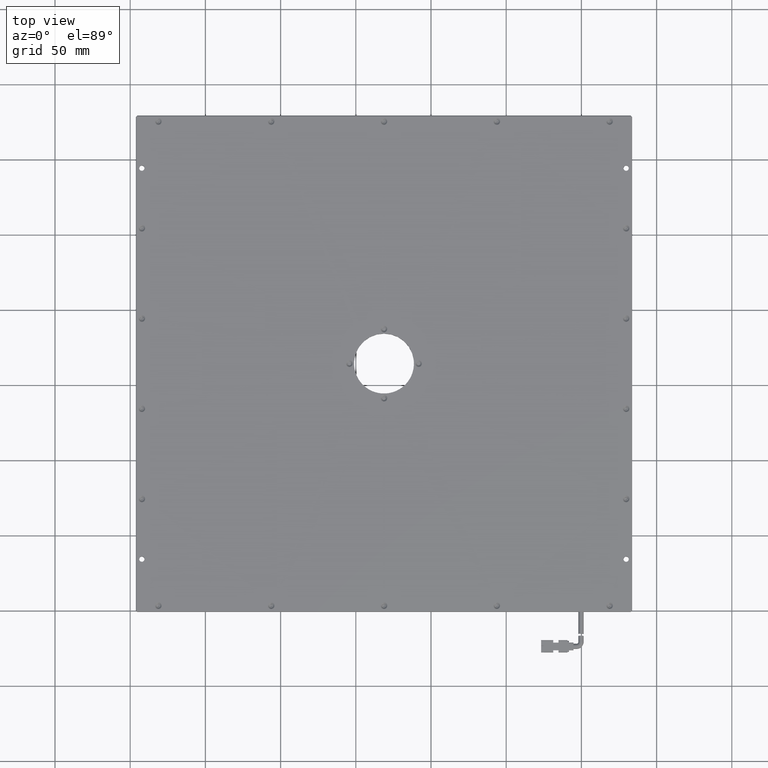
[diagram: clean part render]
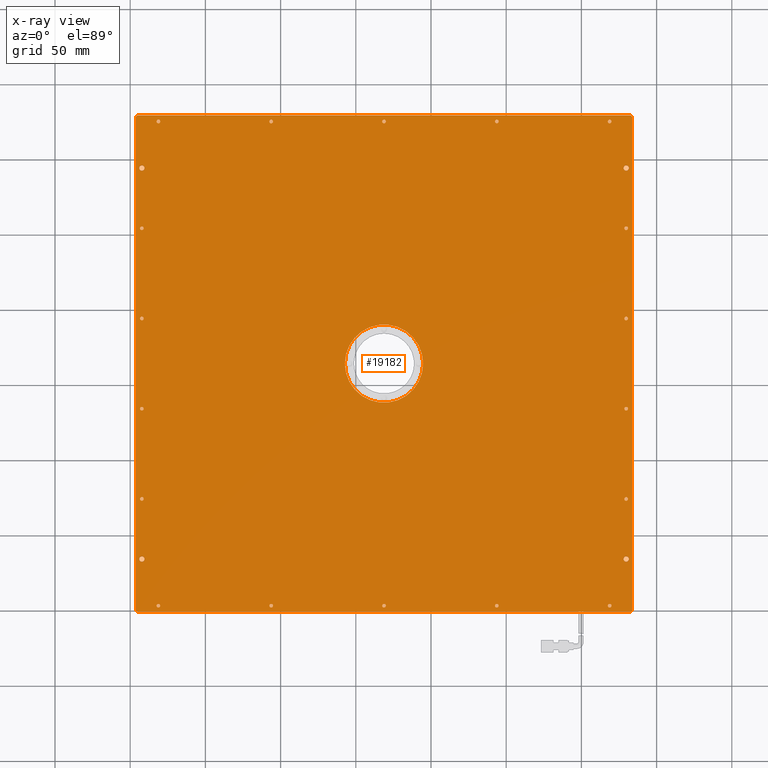
[diagram: x-ray — body ghosted, one internal face saturated and labeled with its STEP entity id]
A machine part, top view, then the same camera in x-ray: the body is ghosted and one INTERNAL B-rep face — a face not visible from any outside direction — is saturated and labeled: STEP entity #19182.
In plain terms, the highlighted planar face has unit normal (0, -0, 1).
Its self-contained STEP definition (entity closure, byte-faithful):
#18 = CIRCLE ( 'NONE', #28772, 1.199999999999978900 ) ;
#124 = VERTEX_POINT ( 'NONE', #7021 ) ;
#370 = CARTESIAN_POINT ( 'NONE',  ( -192.2439076390644700, -65.69342595209401700, 8.000000000019099400 ) ) ;
#433 = AXIS2_PLACEMENT_3D ( 'NONE', #6831, #9291, #19518 ) ;
#702 = EDGE_CURVE ( 'NONE', #32369, #29564, #12776, .T. ) ;
#711 = VERTEX_POINT ( 'NONE', #30310 ) ;
#767 = AXIS2_PLACEMENT_3D ( 'NONE', #370, #18165, #31047 ) ;
#797 = DIRECTION ( 'NONE',  ( 0.0000000000000000000, 0.0000000000000000000, -1.000000000000000000 ) ) ;
#875 = ORIENTED_EDGE ( 'NONE', *, *, #2136, .F. ) ;
#881 = CARTESIAN_POINT ( 'NONE',  ( 129.7560923609355300, -25.69342595209400700, 8.000000000019095800 ) ) ;
#1251 = ORIENTED_EDGE ( 'NONE', *, *, #29043, .F. ) ;
#1323 = ORIENTED_EDGE ( 'NONE', *, *, #9348, .F. ) ;
#1390 = VECTOR ( 'NONE', #23203, 1000.000000000000100 ) ;
#1543 = CARTESIAN_POINT ( 'NONE',  ( -192.2439076390644700, 94.30657404790598300, 8.000000000019095800 ) ) ;
#1576 = CIRCLE ( 'NONE', #12887, 1.199999999999992600 ) ;
#1642 = CARTESIAN_POINT ( 'NONE',  ( -192.2439076390644700, -65.69342595209401700, 8.000000000019099400 ) ) ;
#1650 = EDGE_CURVE ( 'NONE', #22487, #13819, #31326, .T. ) ;
#1664 = EDGE_CURVE ( 'NONE', #31413, #3833, #6856, .T. ) ;
#1701 = ORIENTED_EDGE ( 'NONE', *, *, #14991, .F. ) ;
#1705 = CARTESIAN_POINT ( 'NONE',  ( 119.9560923609355000, 225.3065740479061100, 8.000000000019095800 ) ) ;
#1712 = EDGE_CURVE ( 'NONE', #19999, #10835, #11291, .T. ) ;
#1716 = CARTESIAN_POINT ( 'NONE',  ( -181.2439076390644700, 225.3065740479060500, 8.000000000019095800 ) ) ;
#1827 = AXIS2_PLACEMENT_3D ( 'NONE', #29976, #32204, #30076 ) ;
#2038 = ORIENTED_EDGE ( 'NONE', *, *, #18728, .F. ) ;
#2070 = ORIENTED_EDGE ( 'NONE', *, *, #4820, .F. ) ;
#2124 = DIRECTION ( 'NONE',  ( 1.000000000000000000, 0.0000000000000000000, 0.0000000000000000000 ) ) ;
#2136 = EDGE_CURVE ( 'NONE', #17359, #26655, #6047, .T. ) ;
#2234 = EDGE_CURVE ( 'NONE', #6999, #31773, #26145, .T. ) ;
#2264 = AXIS2_PLACEMENT_3D ( 'NONE', #16101, #14116, #16560 ) ;
#2294 = EDGE_CURVE ( 'NONE', #8428, #26035, #29338, .T. ) ;
#2347 = VERTEX_POINT ( 'NONE', #29747 ) ;
#2375 = VECTOR ( 'NONE', #13214, 1000.000000000000100 ) ;
#2379 = FACE_BOUND ( 'NONE', #30034, .T. ) ;
#2436 = EDGE_CURVE ( 'NONE', #23072, #17480, #28508, .T. ) ;
#2516 = CIRCLE ( 'NONE', #10574, 1.799999999999996000 ) ;
#2553 = EDGE_CURVE ( 'NONE', #2347, #14921, #24467, .T. ) ;
#2600 = CARTESIAN_POINT ( 'NONE',  ( -106.2439076390644600, 225.3065740479060500, 8.000000000019095800 ) ) ;
#2701 = EDGE_CURVE ( 'NONE', #21634, #2768, #1576, .T. ) ;
#2752 = DIRECTION ( 'NONE',  ( 1.000000000000000000, 0.0000000000000000000, 0.0000000000000000000 ) ) ;
#2768 = VERTEX_POINT ( 'NONE', #29599 ) ;
#2816 = ORIENTED_EDGE ( 'NONE', *, *, #2701, .F. ) ;
#2862 = CARTESIAN_POINT ( 'NONE',  ( 117.5560923609355200, -96.69342595209401700, 8.000000000019095800 ) ) ;
#2888 = CARTESIAN_POINT ( 'NONE',  ( 133.7560923609355300, 229.3065740479060500, 8.000000000019099400 ) ) ;
#2909 = CIRCLE ( 'NONE', #3330, 1.199999999999992600 ) ;
#2914 = CARTESIAN_POINT ( 'NONE',  ( 132.7560923609355000, -100.6934259520939700, 8.000000000019097600 ) ) ;
#3014 = CARTESIAN_POINT ( 'NONE',  ( 128.5560923609355400, -25.69342595209400700, 8.000000000019095800 ) ) ;
#3135 = DIRECTION ( 'NONE',  ( 0.0000000000000000000, 0.0000000000000000000, -1.000000000000000000 ) ) ;
#3139 = CARTESIAN_POINT ( 'NONE',  ( -195.2439076390645000, -100.6934259520940000, 8.000000000019097600 ) ) ;
#3144 = CARTESIAN_POINT ( 'NONE',  ( -192.2439076390644700, 34.30657404790599000, 8.000000000019095800 ) ) ;
#3219 = CARTESIAN_POINT ( 'NONE',  ( 118.7560923609355100, 225.3065740479061100, 8.000000000019095800 ) ) ;
#3317 = ORIENTED_EDGE ( 'NONE', *, *, #32926, .F. ) ;
#3330 = AXIS2_PLACEMENT_3D ( 'NONE', #29538, #28624, #20878 ) ;
#3376 = DIRECTION ( 'NONE',  ( 1.000000000000000000, 0.0000000000000000000, 0.0000000000000000000 ) ) ;
#3506 = DIRECTION ( 'NONE',  ( 1.000000000000000000, 0.0000000000000000000, 0.0000000000000000000 ) ) ;
#3534 = CARTESIAN_POINT ( 'NONE',  ( -193.4439076390644600, -25.69342595209400700, 8.000000000019095800 ) ) ;
#3535 = AXIS2_PLACEMENT_3D ( 'NONE', #14899, #19876, #4534 ) ;
#3754 = EDGE_CURVE ( 'NONE', #9263, #124, #25897, .T. ) ;
#3812 = CARTESIAN_POINT ( 'NONE',  ( -105.0439076390644900, 225.3065740479060500, 8.000000000019095800 ) ) ;
#3833 = VERTEX_POINT ( 'NONE', #32748 ) ;
#3881 = DIRECTION ( 'NONE',  ( 0.0000000000000000000, 0.0000000000000000000, -1.000000000000000000 ) ) ;
#3906 = ORIENTED_EDGE ( 'NONE', *, *, #23240, .F. ) ;
#4021 = FACE_BOUND ( 'NONE', #4828, .T. ) ;
#4069 = ORIENTED_EDGE ( 'NONE', *, *, #27746, .F. ) ;
#4148 = CARTESIAN_POINT ( 'NONE',  ( -194.0439076390644600, 194.3065740479059700, 8.000000000019099400 ) ) ;
#4168 = AXIS2_PLACEMENT_3D ( 'NONE', #1543, #19469, #24326 ) ;
#4178 = EDGE_CURVE ( 'NONE', #18015, #10623, #28620, .T. ) ;
#4188 = CARTESIAN_POINT ( 'NONE',  ( 129.7560923609355300, 154.3065740479060000, 8.000000000019095800 ) ) ;
#4297 = EDGE_CURVE ( 'NONE', #8553, #25926, #25016, .T. ) ;
#4368 = ORIENTED_EDGE ( 'NONE', *, *, #25449, .T. ) ;
#4402 = FACE_BOUND ( 'NONE', #16705, .T. ) ;
#4458 = ORIENTED_EDGE ( 'NONE', *, *, #11627, .F. ) ;
#4534 = DIRECTION ( 'NONE',  ( 1.000000000000000000, 0.0000000000000000000, 0.0000000000000000000 ) ) ;
#4540 = DIRECTION ( 'NONE',  ( 0.0000000000000000000, 0.0000000000000000000, -1.000000000000000000 ) ) ;
#4545 = CIRCLE ( 'NONE', #10685, 1.199999999999978900 ) ;
#4585 = EDGE_LOOP ( 'NONE', ( #32529, #4458 ) ) ;
#4820 = EDGE_CURVE ( 'NONE', #10623, #18015, #11095, .T. ) ;
#4828 = EDGE_LOOP ( 'NONE', ( #23461, #10296 ) ) ;
#4878 = VERTEX_POINT ( 'NONE', #7724 ) ;
#4901 = EDGE_CURVE ( 'NONE', #23500, #23954, #5460, .T. ) ;
#4996 = CARTESIAN_POINT ( 'NONE',  ( 130.9560923609354900, 34.30657404790599000, 8.000000000019095800 ) ) ;
#5094 = DIRECTION ( 'NONE',  ( 1.000000000000000000, 0.0000000000000000000, 0.0000000000000000000 ) ) ;
#5150 = CARTESIAN_POINT ( 'NONE',  ( 133.7560923609355300, 229.3065740479060500, 8.000000000019099400 ) ) ;
#5156 = CARTESIAN_POINT ( 'NONE',  ( -192.2439076390644700, 194.3065740479059700, 8.000000000019099400 ) ) ;
#5199 = FACE_BOUND ( 'NONE', #8106, .T. ) ;
#5201 = DIRECTION ( 'NONE',  ( 0.0000000000000000000, 0.0000000000000000000, -1.000000000000000000 ) ) ;
#5236 = DIRECTION ( 'NONE',  ( 0.0000000000000000000, 0.0000000000000000000, -1.000000000000000000 ) ) ;
#5255 = EDGE_CURVE ( 'NONE', #8553, #7636, #14605, .T. ) ;
#5273 = AXIS2_PLACEMENT_3D ( 'NONE', #1716, #27531, #19641 ) ;
#5329 = CARTESIAN_POINT ( 'NONE',  ( -31.24390763906445700, 64.30657404790599700, 8.000000000019099400 ) ) ;
#5355 = EDGE_CURVE ( 'NONE', #11632, #12613, #25443, .T. ) ;
#5374 = DIRECTION ( 'NONE',  ( 0.0000000000000000000, -0.0000000000000000000, 1.000000000000000000 ) ) ;
#5460 = CIRCLE ( 'NONE', #16863, 1.199999999999992600 ) ;
#5484 = AXIS2_PLACEMENT_3D ( 'NONE', #2600, #17925, #20527 ) ;
#5601 = EDGE_CURVE ( 'NONE', #30596, #6038, #4545, .T. ) ;
#5606 = FACE_BOUND ( 'NONE', #4585, .T. ) ;
#5720 = EDGE_LOOP ( 'NONE', ( #24439, #14160 ) ) ;
#5819 = DIRECTION ( 'NONE',  ( 1.000000000000000000, 0.0000000000000000000, 0.0000000000000000000 ) ) ;
#5853 = ORIENTED_EDGE ( 'NONE', *, *, #5601, .F. ) ;
#6038 = VERTEX_POINT ( 'NONE', #11810 ) ;
#6047 = LINE ( 'NONE', #2888, #18860 ) ;
#6228 = EDGE_LOOP ( 'NONE', ( #28458, #32213 ) ) ;
#6274 = ORIENTED_EDGE ( 'NONE', *, *, #19658, .F. ) ;
#6297 = CARTESIAN_POINT ( 'NONE',  ( -107.4439076390644500, -96.69342595209406000, 8.000000000019095800 ) ) ;
#6406 = FACE_BOUND ( 'NONE', #9289, .T. ) ;
#6575 = CARTESIAN_POINT ( 'NONE',  ( -31.24390763906445700, 64.30657404790599700, 8.000000000019099400 ) ) ;
#6583 = EDGE_CURVE ( 'NONE', #24718, #20571, #21601, .T. ) ;
#6755 = CARTESIAN_POINT ( 'NONE',  ( -192.2439076390644700, 34.30657404790599000, 8.000000000019095800 ) ) ;
#6780 = FACE_BOUND ( 'NONE', #18733, .T. ) ;
#6831 = CARTESIAN_POINT ( 'NONE',  ( 118.7560923609355100, 225.3065740479061100, 8.000000000019095800 ) ) ;
#6843 = CARTESIAN_POINT ( 'NONE',  ( 128.5560923609355400, 154.3065740479060000, 8.000000000019095800 ) ) ;
#6856 = CIRCLE ( 'NONE', #9184, 1.199999999999978900 ) ;
#6900 = CARTESIAN_POINT ( 'NONE',  ( 117.5560923609355200, 225.3065740479061100, 8.000000000019095800 ) ) ;
#6999 = VERTEX_POINT ( 'NONE', #1705 ) ;
#7013 = CIRCLE ( 'NONE', #15856, 1.199999999999978900 ) ;
#7021 = CARTESIAN_POINT ( 'NONE',  ( -105.0439076390644900, -96.69342595209406000, 8.000000000019095800 ) ) ;
#7072 = CIRCLE ( 'NONE', #22678, 1.200000000000006600 ) ;
#7243 = VERTEX_POINT ( 'NONE', #26942 ) ;
#7389 = CARTESIAN_POINT ( 'NONE',  ( 133.7560923609355300, -99.69342595209396100, 8.000000000019097600 ) ) ;
#7469 = EDGE_CURVE ( 'NONE', #2768, #21634, #20858, .T. ) ;
#7534 = EDGE_CURVE ( 'NONE', #24550, #31129, #13619, .T. ) ;
#7564 = CARTESIAN_POINT ( 'NONE',  ( 119.9560923609355000, -96.69342595209401700, 8.000000000019095800 ) ) ;
#7573 = FACE_OUTER_BOUND ( 'NONE', #17624, .T. ) ;
#7587 = DIRECTION ( 'NONE',  ( 0.0000000000000000000, 0.0000000000000000000, -1.000000000000000000 ) ) ;
#7636 = VERTEX_POINT ( 'NONE', #2914 ) ;
#7706 = CIRCLE ( 'NONE', #12278, 26.00000000000002100 ) ;
#7724 = CARTESIAN_POINT ( 'NONE',  ( -180.0439076390644900, -96.69342595209407400, 8.000000000019095800 ) ) ;
#7824 = ORIENTED_EDGE ( 'NONE', *, *, #11873, .F. ) ;
#7960 = DIRECTION ( 'NONE',  ( 0.0000000000000000000, 0.0000000000000000000, -1.000000000000000000 ) ) ;
#7965 = DIRECTION ( 'NONE',  ( 1.000000000000000000, 0.0000000000000000000, 0.0000000000000000000 ) ) ;
#8106 = EDGE_LOOP ( 'NONE', ( #30561, #30810 ) ) ;
#8205 = CARTESIAN_POINT ( 'NONE',  ( -191.0439076390645100, 94.30657404790598300, 8.000000000019095800 ) ) ;
#8329 = CARTESIAN_POINT ( 'NONE',  ( 129.7560923609355300, 154.3065740479060000, 8.000000000019095800 ) ) ;
#8402 = AXIS2_PLACEMENT_3D ( 'NONE', #11250, #23718, #16380 ) ;
#8428 = VERTEX_POINT ( 'NONE', #27186 ) ;
#8454 = CIRCLE ( 'NONE', #28875, 1.199999999999978900 ) ;
#8508 = CARTESIAN_POINT ( 'NONE',  ( 131.5560923609355100, -65.69342595209401700, 8.000000000019099400 ) ) ;
#8553 = VERTEX_POINT ( 'NONE', #7389 ) ;
#8595 = CIRCLE ( 'NONE', #23662, 1.200000000000006600 ) ;
#9050 = EDGE_LOOP ( 'NONE', ( #1701, #4069 ) ) ;
#9080 = AXIS2_PLACEMENT_3D ( 'NONE', #30547, #5236, #18101 ) ;
#9093 = EDGE_CURVE ( 'NONE', #30023, #19202, #8595, .T. ) ;
#9184 = AXIS2_PLACEMENT_3D ( 'NONE', #3144, #31123, #5819 ) ;
#9200 = CARTESIAN_POINT ( 'NONE',  ( 130.9560923609354900, -25.69342595209400700, 8.000000000019095800 ) ) ;
#9228 = DIRECTION ( 'NONE',  ( 1.000000000000000000, 0.0000000000000000000, 0.0000000000000000000 ) ) ;
#9231 = DIRECTION ( 'NONE',  ( 0.0000000000000000000, 0.0000000000000000000, -1.000000000000000000 ) ) ;
#9263 = VERTEX_POINT ( 'NONE', #6297 ) ;
#9289 = EDGE_LOOP ( 'NONE', ( #27563, #28871 ) ) ;
#9291 = DIRECTION ( 'NONE',  ( 0.0000000000000000000, 0.0000000000000000000, -1.000000000000000000 ) ) ;
#9348 = EDGE_CURVE ( 'NONE', #17480, #23072, #12580, .T. ) ;
#9404 = DIRECTION ( 'NONE',  ( -0.0000000000000000000, -1.000000000000000000, -0.0000000000000000000 ) ) ;
#9441 = CARTESIAN_POINT ( 'NONE',  ( -192.2439076390644700, -25.69342595209400700, 8.000000000019095800 ) ) ;
#9453 = DIRECTION ( 'NONE',  ( 0.7071067811865672200, -0.7071067811865279200, 0.0000000000000000000 ) ) ;
#9503 = DIRECTION ( 'NONE',  ( 0.0000000000000000000, 0.0000000000000000000, -1.000000000000000000 ) ) ;
#9793 = VECTOR ( 'NONE', #9404, 1000.000000000000000 ) ;
#9875 = AXIS2_PLACEMENT_3D ( 'NONE', #18363, #30808, #28481 ) ;
#9983 = FACE_BOUND ( 'NONE', #26868, .T. ) ;
#10045 = CARTESIAN_POINT ( 'NONE',  ( -32.44390763906449100, -96.69342595209404600, 8.000000000019095800 ) ) ;
#10047 = CARTESIAN_POINT ( 'NONE',  ( 43.75609236093549700, -96.69342595209403200, 8.000000000019095800 ) ) ;
#10110 = CARTESIAN_POINT ( 'NONE',  ( -31.24390763906448100, -96.69342595209404600, 8.000000000019095800 ) ) ;
#10175 = DIRECTION ( 'NONE',  ( 0.0000000000000000000, 0.0000000000000000000, -1.000000000000000000 ) ) ;
#10237 = EDGE_CURVE ( 'NONE', #14921, #2347, #8454, .T. ) ;
#10273 = ORIENTED_EDGE ( 'NONE', *, *, #11685, .F. ) ;
#10285 = DIRECTION ( 'NONE',  ( 1.000000000000000000, 0.0000000000000000000, -0.0000000000000000000 ) ) ;
#10296 = ORIENTED_EDGE ( 'NONE', *, *, #1664, .F. ) ;
#10403 = VERTEX_POINT ( 'NONE', #15556 ) ;
#10412 = CARTESIAN_POINT ( 'NONE',  ( -5.243907639064432600, 64.30657404790599700, 8.000000000019099400 ) ) ;
#10456 = DIRECTION ( 'NONE',  ( -0.0000000000000000000, -0.0000000000000000000, -1.000000000000000000 ) ) ;
#10464 = ORIENTED_EDGE ( 'NONE', *, *, #7469, .F. ) ;
#10501 = CARTESIAN_POINT ( 'NONE',  ( -196.2439076390645000, 228.3065740479060000, 8.000000000019097600 ) ) ;
#10574 = AXIS2_PLACEMENT_3D ( 'NONE', #29240, #19013, #24310 ) ;
#10608 = CARTESIAN_POINT ( 'NONE',  ( 133.7560923609355300, -100.6934259520940200, 8.000000000019099400 ) ) ;
#10623 = VERTEX_POINT ( 'NONE', #3812 ) ;
#10685 = AXIS2_PLACEMENT_3D ( 'NONE', #19569, #9231, #22284 ) ;
#10739 = DIRECTION ( 'NONE',  ( 1.000000000000000000, 0.0000000000000000000, 0.0000000000000000000 ) ) ;
#10750 = DIRECTION ( 'NONE',  ( 1.000000000000000000, 0.0000000000000000000, 0.0000000000000000000 ) ) ;
#10822 = FACE_BOUND ( 'NONE', #29012, .T. ) ;
#10835 = VERTEX_POINT ( 'NONE', #15283 ) ;
#10942 = ORIENTED_EDGE ( 'NONE', *, *, #1650, .F. ) ;
#10982 = DIRECTION ( 'NONE',  ( 1.000000000000000000, 0.0000000000000000000, 0.0000000000000000000 ) ) ;
#11071 = CIRCLE ( 'NONE', #4168, 1.199999999999978900 ) ;
#11091 = CARTESIAN_POINT ( 'NONE',  ( -192.2439076390644700, 154.3065740479060000, 8.000000000019095800 ) ) ;
#11095 = CIRCLE ( 'NONE', #5484, 1.199999999999978900 ) ;
#11158 = EDGE_CURVE ( 'NONE', #3833, #31413, #27444, .T. ) ;
#11250 = CARTESIAN_POINT ( 'NONE',  ( 43.75609236093549700, 225.3065740479061100, 8.000000000019095800 ) ) ;
#11291 = CIRCLE ( 'NONE', #31731, 1.199999999999978900 ) ;
#11406 = ORIENTED_EDGE ( 'NONE', *, *, #19892, .F. ) ;
#11433 = VERTEX_POINT ( 'NONE', #17478 ) ;
#11578 = CIRCLE ( 'NONE', #26749, 1.199999999999978900 ) ;
#11627 = EDGE_CURVE ( 'NONE', #19202, #30023, #31732, .T. ) ;
#11632 = VERTEX_POINT ( 'NONE', #9200 ) ;
#11642 = VECTOR ( 'NONE', #23431, 1000.000000000000100 ) ;
#11685 = EDGE_CURVE ( 'NONE', #11433, #25503, #20531, .T. ) ;
#11810 = CARTESIAN_POINT ( 'NONE',  ( -191.0439076390645100, -25.69342595209400700, 8.000000000019095800 ) ) ;
#11873 = EDGE_CURVE ( 'NONE', #711, #4878, #25727, .T. ) ;
#12002 = DIRECTION ( 'NONE',  ( 0.0000000000000000000, 0.0000000000000000000, -1.000000000000000000 ) ) ;
#12278 = AXIS2_PLACEMENT_3D ( 'NONE', #6575, #13875, #14210 ) ;
#12322 = AXIS2_PLACEMENT_3D ( 'NONE', #20769, #5201, #23151 ) ;
#12369 = AXIS2_PLACEMENT_3D ( 'NONE', #1642, #27454, #22062 ) ;
#12516 = ORIENTED_EDGE ( 'NONE', *, *, #2436, .F. ) ;
#12580 = CIRCLE ( 'NONE', #27971, 1.799999999999996000 ) ;
#12613 = VERTEX_POINT ( 'NONE', #3014 ) ;
#12689 = CARTESIAN_POINT ( 'NONE',  ( -181.2439076390644700, -96.69342595209407400, 8.000000000019095800 ) ) ;
#12717 = DIRECTION ( 'NONE',  ( 0.0000000000000000000, 0.0000000000000000000, -1.000000000000000000 ) ) ;
#12738 = ORIENTED_EDGE ( 'NONE', *, *, #6583, .F. ) ;
#12776 = CIRCLE ( 'NONE', #33263, 1.799999999999968300 ) ;
#12798 = FACE_BOUND ( 'NONE', #20165, .T. ) ;
#12887 = AXIS2_PLACEMENT_3D ( 'NONE', #13676, #31586, #16225 ) ;
#12994 = CARTESIAN_POINT ( 'NONE',  ( 127.9560923609355300, -65.69342595209401700, 8.000000000019099400 ) ) ;
#13131 = AXIS2_PLACEMENT_3D ( 'NONE', #14625, #19914, #32890 ) ;
#13214 = DIRECTION ( 'NONE',  ( -0.7071067811865474600, 0.7071067811865474600, 0.0000000000000000000 ) ) ;
#13235 = FACE_BOUND ( 'NONE', #15820, .T. ) ;
#13250 = CARTESIAN_POINT ( 'NONE',  ( -107.4439076390644500, 225.3065740479060500, 8.000000000019095800 ) ) ;
#13285 = ORIENTED_EDGE ( 'NONE', *, *, #14050, .F. ) ;
#13361 = EDGE_CURVE ( 'NONE', #24550, #7636, #28860, .T. ) ;
#13433 = AXIS2_PLACEMENT_3D ( 'NONE', #19880, #4540, #32967 ) ;
#13571 = CARTESIAN_POINT ( 'NONE',  ( -192.2439076390644700, 154.3065740479060000, 8.000000000019095800 ) ) ;
#13619 = LINE ( 'NONE', #3139, #2375 ) ;
#13676 = CARTESIAN_POINT ( 'NONE',  ( 43.75609236093549700, -96.69342595209403200, 8.000000000019095800 ) ) ;
#13713 = CARTESIAN_POINT ( 'NONE',  ( -106.2439076390644600, -96.69342595209406000, 8.000000000019095800 ) ) ;
#13806 = EDGE_LOOP ( 'NONE', ( #1251, #24179 ) ) ;
#13819 = VERTEX_POINT ( 'NONE', #8205 ) ;
#13875 = DIRECTION ( 'NONE',  ( -0.0000000000000000000, -0.0000000000000000000, -1.000000000000000000 ) ) ;
#14008 = ORIENTED_EDGE ( 'NONE', *, *, #23009, .T. ) ;
#14050 = EDGE_CURVE ( 'NONE', #24188, #31129, #28693, .T. ) ;
#14107 = CARTESIAN_POINT ( 'NONE',  ( -30.04390763906447500, -96.69342595209404600, 8.000000000019095800 ) ) ;
#14116 = DIRECTION ( 'NONE',  ( 0.0000000000000000000, 0.0000000000000000000, -1.000000000000000000 ) ) ;
#14160 = ORIENTED_EDGE ( 'NONE', *, *, #702, .F. ) ;
#14210 = DIRECTION ( 'NONE',  ( -1.000000000000000000, 0.0000000000000000000, 0.0000000000000000000 ) ) ;
#14410 = CARTESIAN_POINT ( 'NONE',  ( 44.95609236093549300, 225.3065740479061100, 8.000000000019095800 ) ) ;
#14596 = ORIENTED_EDGE ( 'NONE', *, *, #4297, .F. ) ;
#14605 = LINE ( 'NONE', #15199, #1390 ) ;
#14625 = CARTESIAN_POINT ( 'NONE',  ( -31.24390763906448100, 225.3065740479060500, 8.000000000019095800 ) ) ;
#14899 = CARTESIAN_POINT ( 'NONE',  ( -106.2439076390644600, -96.69342595209406000, 8.000000000019095800 ) ) ;
#14921 = VERTEX_POINT ( 'NONE', #15865 ) ;
#14991 = EDGE_CURVE ( 'NONE', #26414, #19310, #2516, .T. ) ;
#15001 = ORIENTED_EDGE ( 'NONE', *, *, #2294, .F. ) ;
#15043 = EDGE_CURVE ( 'NONE', #20571, #24718, #7706, .T. ) ;
#15199 = CARTESIAN_POINT ( 'NONE',  ( 133.7560923609355300, -99.69342595209396100, 8.000000000019097600 ) ) ;
#15208 = VERTEX_POINT ( 'NONE', #14410 ) ;
#15283 = CARTESIAN_POINT ( 'NONE',  ( -191.0439076390645100, 154.3065740479060000, 8.000000000019095800 ) ) ;
#15292 = VERTEX_POINT ( 'NONE', #4996 ) ;
#15556 = CARTESIAN_POINT ( 'NONE',  ( -194.0439076390644600, -65.69342595209401700, 8.000000000019099400 ) ) ;
#15818 = CIRCLE ( 'NONE', #20750, 1.199999999999992600 ) ;
#15820 = EDGE_LOOP ( 'NONE', ( #27482, #10942 ) ) ;
#15856 = AXIS2_PLACEMENT_3D ( 'NONE', #12689, #23036, #5094 ) ;
#15865 = CARTESIAN_POINT ( 'NONE',  ( 128.5560923609355400, 94.30657404790598300, 8.000000000019095800 ) ) ;
#15874 = AXIS2_PLACEMENT_3D ( 'NONE', #4188, #12002, #22118 ) ;
#15920 = VECTOR ( 'NONE', #9453, 1000.000000000000000 ) ;
#15959 = DIRECTION ( 'NONE',  ( 0.0000000000000000000, 0.0000000000000000000, -1.000000000000000000 ) ) ;
#16005 = FACE_BOUND ( 'NONE', #5720, .T. ) ;
#16031 = CARTESIAN_POINT ( 'NONE',  ( 42.55609236093550900, 225.3065740479061100, 8.000000000019095800 ) ) ;
#16066 = DIRECTION ( 'NONE',  ( 1.000000000000000000, 0.0000000000000000000, 0.0000000000000000000 ) ) ;
#16101 = CARTESIAN_POINT ( 'NONE',  ( 129.7560923609355300, -25.69342595209400700, 8.000000000019095800 ) ) ;
#16121 = CARTESIAN_POINT ( 'NONE',  ( -106.2439076390644600, 225.3065740479060500, 8.000000000019095800 ) ) ;
#16225 = DIRECTION ( 'NONE',  ( 1.000000000000000000, 0.0000000000000000000, 0.0000000000000000000 ) ) ;
#16287 = CARTESIAN_POINT ( 'NONE',  ( 127.9560923609355300, 194.3065740479059700, 8.000000000019099400 ) ) ;
#16380 = DIRECTION ( 'NONE',  ( 1.000000000000000000, 0.0000000000000000000, 0.0000000000000000000 ) ) ;
#16386 = CARTESIAN_POINT ( 'NONE',  ( 133.7560923609355300, 228.3065740479060500, 8.000000000019097600 ) ) ;
#16433 = EDGE_CURVE ( 'NONE', #29564, #32369, #28811, .T. ) ;
#16551 = ORIENTED_EDGE ( 'NONE', *, *, #7534, .T. ) ;
#16560 = DIRECTION ( 'NONE',  ( 1.000000000000000000, 0.0000000000000000000, 0.0000000000000000000 ) ) ;
#16662 = CARTESIAN_POINT ( 'NONE',  ( 132.7560923609354700, 229.3065740479060500, 8.000000000019097600 ) ) ;
#16673 = AXIS2_PLACEMENT_3D ( 'NONE', #881, #3135, #10739 ) ;
#16705 = EDGE_LOOP ( 'NONE', ( #28306, #12738 ) ) ;
#16768 = AXIS2_PLACEMENT_3D ( 'NONE', #33170, #27709, #2124 ) ;
#16822 = EDGE_CURVE ( 'NONE', #13819, #22487, #11071, .T. ) ;
#16863 = AXIS2_PLACEMENT_3D ( 'NONE', #23341, #26148, #24364 ) ;
#16899 = AXIS2_PLACEMENT_3D ( 'NONE', #5150, #5374, #10285 ) ;
#17035 = CARTESIAN_POINT ( 'NONE',  ( 129.7560923609355300, 194.3065740479059700, 8.000000000019099400 ) ) ;
#17197 = ORIENTED_EDGE ( 'NONE', *, *, #27465, .F. ) ;
#17199 = DIRECTION ( 'NONE',  ( 0.0000000000000000000, 0.0000000000000000000, -1.000000000000000000 ) ) ;
#17203 = FACE_BOUND ( 'NONE', #22514, .T. ) ;
#17359 = VERTEX_POINT ( 'NONE', #20798 ) ;
#17414 = CARTESIAN_POINT ( 'NONE',  ( -192.2439076390644700, 194.3065740479059700, 8.000000000019099400 ) ) ;
#17446 = AXIS2_PLACEMENT_3D ( 'NONE', #13571, #19044, #3376 ) ;
#17478 = CARTESIAN_POINT ( 'NONE',  ( -180.0439076390644900, 225.3065740479060500, 8.000000000019095800 ) ) ;
#17480 = VERTEX_POINT ( 'NONE', #16287 ) ;
#17524 = DIRECTION ( 'NONE',  ( 0.0000000000000000000, 0.0000000000000000000, -1.000000000000000000 ) ) ;
#17624 = EDGE_LOOP ( 'NONE', ( #14008, #875, #4368, #14596, #32306, #29017, #16551, #13285 ) ) ;
#17862 = ORIENTED_EDGE ( 'NONE', *, *, #28001, .F. ) ;
#17890 = EDGE_LOOP ( 'NONE', ( #3317, #5853 ) ) ;
#17892 = EDGE_CURVE ( 'NONE', #15208, #28633, #2909, .T. ) ;
#17925 = DIRECTION ( 'NONE',  ( 0.0000000000000000000, 0.0000000000000000000, -1.000000000000000000 ) ) ;
#17953 = DIRECTION ( 'NONE',  ( 0.0000000000000000000, 0.0000000000000000000, -1.000000000000000000 ) ) ;
#18015 = VERTEX_POINT ( 'NONE', #13250 ) ;
#18101 = DIRECTION ( 'NONE',  ( 1.000000000000000000, 0.0000000000000000000, 0.0000000000000000000 ) ) ;
#18160 = VECTOR ( 'NONE', #27684, 1000.000000000000000 ) ;
#18165 = DIRECTION ( 'NONE',  ( 0.0000000000000000000, 0.0000000000000000000, -1.000000000000000000 ) ) ;
#18363 = CARTESIAN_POINT ( 'NONE',  ( 129.7560923609355300, 94.30657404790598300, 8.000000000019095800 ) ) ;
#18437 = VERTEX_POINT ( 'NONE', #31481 ) ;
#18728 = EDGE_CURVE ( 'NONE', #10403, #18437, #19633, .T. ) ;
#18733 = EDGE_LOOP ( 'NONE', ( #26286, #7824 ) ) ;
#18776 = CIRCLE ( 'NONE', #21144, 1.199999999999992600 ) ;
#18860 = VECTOR ( 'NONE', #25986, 1000.000000000000000 ) ;
#18947 = CARTESIAN_POINT ( 'NONE',  ( -57.24390763906448100, 64.30657404790599700, 8.000000000019099400 ) ) ;
#19013 = DIRECTION ( 'NONE',  ( 0.0000000000000000000, 0.0000000000000000000, -1.000000000000000000 ) ) ;
#19044 = DIRECTION ( 'NONE',  ( 0.0000000000000000000, 0.0000000000000000000, -1.000000000000000000 ) ) ;
#19182 = ADVANCED_FACE ( 'NONE', ( #7573, #4402, #6780, #2379, #5199, #12798, #5606, #30835, #21251, #17203, #30455, #27290, #10822, #26896, #20056, #13235, #9983, #4021, #6406, #20444, #32861, #33255, #23678, #16005 ), #24900, .F. ) ;
#19202 = VERTEX_POINT ( 'NONE', #10045 ) ;
#19310 = VERTEX_POINT ( 'NONE', #12994 ) ;
#19469 = DIRECTION ( 'NONE',  ( 0.0000000000000000000, 0.0000000000000000000, -1.000000000000000000 ) ) ;
#19518 = DIRECTION ( 'NONE',  ( 1.000000000000000000, 0.0000000000000000000, 0.0000000000000000000 ) ) ;
#19548 = AXIS2_PLACEMENT_3D ( 'NONE', #5156, #7587, #30694 ) ;
#19569 = CARTESIAN_POINT ( 'NONE',  ( -192.2439076390644700, -25.69342595209400700, 8.000000000019095800 ) ) ;
#19633 = CIRCLE ( 'NONE', #767, 1.799999999999968300 ) ;
#19641 = DIRECTION ( 'NONE',  ( 1.000000000000000000, 0.0000000000000000000, 0.0000000000000000000 ) ) ;
#19658 = EDGE_CURVE ( 'NONE', #18437, #10403, #23187, .T. ) ;
#19876 = DIRECTION ( 'NONE',  ( 0.0000000000000000000, 0.0000000000000000000, -1.000000000000000000 ) ) ;
#19880 = CARTESIAN_POINT ( 'NONE',  ( -181.2439076390644700, -96.69342595209407400, 8.000000000019095800 ) ) ;
#19892 = EDGE_CURVE ( 'NONE', #25503, #11433, #23553, .T. ) ;
#19914 = DIRECTION ( 'NONE',  ( 0.0000000000000000000, 0.0000000000000000000, -1.000000000000000000 ) ) ;
#19999 = VERTEX_POINT ( 'NONE', #26195 ) ;
#20056 = FACE_BOUND ( 'NONE', #6228, .T. ) ;
#20165 = EDGE_LOOP ( 'NONE', ( #2070, #24207 ) ) ;
#20255 = EDGE_CURVE ( 'NONE', #4878, #711, #7013, .T. ) ;
#20298 = ORIENTED_EDGE ( 'NONE', *, *, #2234, .F. ) ;
#20444 = FACE_BOUND ( 'NONE', #17890, .T. ) ;
#20527 = DIRECTION ( 'NONE',  ( 1.000000000000000000, 0.0000000000000000000, 0.0000000000000000000 ) ) ;
#20531 = CIRCLE ( 'NONE', #5273, 1.199999999999978900 ) ;
#20571 = VERTEX_POINT ( 'NONE', #18947 ) ;
#20750 = AXIS2_PLACEMENT_3D ( 'NONE', #25917, #28475, #30905 ) ;
#20769 = CARTESIAN_POINT ( 'NONE',  ( 129.7560923609355300, 34.30657404790599000, 8.000000000019095800 ) ) ;
#20798 = CARTESIAN_POINT ( 'NONE',  ( 132.7560923609354700, 229.3065740479060500, 8.000000000019097600 ) ) ;
#20858 = CIRCLE ( 'NONE', #24934, 1.199999999999992600 ) ;
#20878 = DIRECTION ( 'NONE',  ( 1.000000000000000000, 0.0000000000000000000, 0.0000000000000000000 ) ) ;
#20973 = CIRCLE ( 'NONE', #26260, 1.199999999999978900 ) ;
#21144 = AXIS2_PLACEMENT_3D ( 'NONE', #3219, #15959, #16066 ) ;
#21251 = FACE_BOUND ( 'NONE', #32527, .T. ) ;
#21411 = CARTESIAN_POINT ( 'NONE',  ( -192.2439076390644700, 94.30657404790598300, 8.000000000019095800 ) ) ;
#21601 = CIRCLE ( 'NONE', #29216, 26.00000000000002100 ) ;
#21632 = ORIENTED_EDGE ( 'NONE', *, *, #21957, .F. ) ;
#21634 = VERTEX_POINT ( 'NONE', #32669 ) ;
#21957 = EDGE_CURVE ( 'NONE', #28633, #15208, #22169, .T. ) ;
#21963 = EDGE_CURVE ( 'NONE', #124, #9263, #20973, .T. ) ;
#22062 = DIRECTION ( 'NONE',  ( 1.000000000000000000, 0.0000000000000000000, 0.0000000000000000000 ) ) ;
#22118 = DIRECTION ( 'NONE',  ( 1.000000000000000000, 0.0000000000000000000, 0.0000000000000000000 ) ) ;
#22169 = CIRCLE ( 'NONE', #8402, 1.199999999999992600 ) ;
#22284 = DIRECTION ( 'NONE',  ( 1.000000000000000000, 0.0000000000000000000, 0.0000000000000000000 ) ) ;
#22311 = CARTESIAN_POINT ( 'NONE',  ( -193.4439076390644600, 34.30657404790599000, 8.000000000019095800 ) ) ;
#22487 = VERTEX_POINT ( 'NONE', #29177 ) ;
#22514 = EDGE_LOOP ( 'NONE', ( #23795, #21632 ) ) ;
#22678 = AXIS2_PLACEMENT_3D ( 'NONE', #23373, #7960, #25953 ) ;
#22765 = CARTESIAN_POINT ( 'NONE',  ( 128.5560923609355400, 34.30657404790599000, 8.000000000019095800 ) ) ;
#22809 = VERTEX_POINT ( 'NONE', #22765 ) ;
#22970 = CARTESIAN_POINT ( 'NONE',  ( -195.2439076390645600, 229.3065740479060000, 8.000000000019097600 ) ) ;
#23009 = EDGE_CURVE ( 'NONE', #24188, #26655, #26102, .T. ) ;
#23036 = DIRECTION ( 'NONE',  ( 0.0000000000000000000, 0.0000000000000000000, -1.000000000000000000 ) ) ;
#23072 = VERTEX_POINT ( 'NONE', #28573 ) ;
#23151 = DIRECTION ( 'NONE',  ( 1.000000000000000000, 0.0000000000000000000, 0.0000000000000000000 ) ) ;
#23156 = CIRCLE ( 'NONE', #9080, 1.799999999999996000 ) ;
#23187 = CIRCLE ( 'NONE', #12369, 1.799999999999968300 ) ;
#23203 = DIRECTION ( 'NONE',  ( -0.7071067811865474600, -0.7071067811865474600, 0.0000000000000000000 ) ) ;
#23240 = EDGE_CURVE ( 'NONE', #15292, #22809, #11578, .T. ) ;
#23341 = CARTESIAN_POINT ( 'NONE',  ( 118.7560923609355100, -96.69342595209401700, 8.000000000019095800 ) ) ;
#23373 = CARTESIAN_POINT ( 'NONE',  ( -31.24390763906448100, 225.3065740479060500, 8.000000000019095800 ) ) ;
#23431 = DIRECTION ( 'NONE',  ( 0.7071067811865474600, 0.7071067811865474600, 0.0000000000000000000 ) ) ;
#23461 = ORIENTED_EDGE ( 'NONE', *, *, #11158, .F. ) ;
#23500 = VERTEX_POINT ( 'NONE', #2862 ) ;
#23553 = CIRCLE ( 'NONE', #31714, 1.199999999999978900 ) ;
#23662 = AXIS2_PLACEMENT_3D ( 'NONE', #10110, #17953, #7965 ) ;
#23678 = FACE_BOUND ( 'NONE', #27514, .T. ) ;
#23718 = DIRECTION ( 'NONE',  ( 0.0000000000000000000, 0.0000000000000000000, -1.000000000000000000 ) ) ;
#23795 = ORIENTED_EDGE ( 'NONE', *, *, #17892, .F. ) ;
#23844 = DIRECTION ( 'NONE',  ( 1.000000000000000000, 0.0000000000000000000, 0.0000000000000000000 ) ) ;
#23888 = ORIENTED_EDGE ( 'NONE', *, *, #1712, .F. ) ;
#23954 = VERTEX_POINT ( 'NONE', #7564 ) ;
#24179 = ORIENTED_EDGE ( 'NONE', *, *, #4901, .F. ) ;
#24188 = VERTEX_POINT ( 'NONE', #29432 ) ;
#24207 = ORIENTED_EDGE ( 'NONE', *, *, #4178, .F. ) ;
#24250 = CARTESIAN_POINT ( 'NONE',  ( -32.44390763906449100, 225.3065740479060500, 8.000000000019095800 ) ) ;
#24310 = DIRECTION ( 'NONE',  ( 1.000000000000000000, 0.0000000000000000000, 0.0000000000000000000 ) ) ;
#24326 = DIRECTION ( 'NONE',  ( 1.000000000000000000, 0.0000000000000000000, 0.0000000000000000000 ) ) ;
#24364 = DIRECTION ( 'NONE',  ( 1.000000000000000000, 0.0000000000000000000, 0.0000000000000000000 ) ) ;
#24438 = VECTOR ( 'NONE', #31101, 1000.000000000000000 ) ;
#24439 = ORIENTED_EDGE ( 'NONE', *, *, #16433, .F. ) ;
#24467 = CIRCLE ( 'NONE', #9875, 1.199999999999978900 ) ;
#24550 = VERTEX_POINT ( 'NONE', #30481 ) ;
#24639 = CARTESIAN_POINT ( 'NONE',  ( 129.7560923609355300, 34.30657404790599000, 8.000000000019095800 ) ) ;
#24718 = VERTEX_POINT ( 'NONE', #10412 ) ;
#24849 = DIRECTION ( 'NONE',  ( 1.000000000000000000, 0.0000000000000000000, 0.0000000000000000000 ) ) ;
#24900 = PLANE ( 'NONE',  #16899 ) ;
#24934 = AXIS2_PLACEMENT_3D ( 'NONE', #10047, #10175, #30688 ) ;
#25016 = LINE ( 'NONE', #32368, #18160 ) ;
#25397 = ORIENTED_EDGE ( 'NONE', *, *, #33256, .F. ) ;
#25443 = CIRCLE ( 'NONE', #16673, 1.199999999999978900 ) ;
#25446 = EDGE_LOOP ( 'NONE', ( #20298, #17862 ) ) ;
#25449 = EDGE_CURVE ( 'NONE', #17359, #25926, #26002, .T. ) ;
#25503 = VERTEX_POINT ( 'NONE', #29681 ) ;
#25663 = AXIS2_PLACEMENT_3D ( 'NONE', #6755, #3881, #27313 ) ;
#25727 = CIRCLE ( 'NONE', #13433, 1.199999999999978900 ) ;
#25875 = CARTESIAN_POINT ( 'NONE',  ( -181.2439076390644700, 225.3065740479060500, 8.000000000019095800 ) ) ;
#25897 = CIRCLE ( 'NONE', #3535, 1.199999999999978900 ) ;
#25917 = CARTESIAN_POINT ( 'NONE',  ( 118.7560923609355100, -96.69342595209401700, 8.000000000019095800 ) ) ;
#25926 = VERTEX_POINT ( 'NONE', #16386 ) ;
#25953 = DIRECTION ( 'NONE',  ( 1.000000000000000000, 0.0000000000000000000, 0.0000000000000000000 ) ) ;
#25966 = DIRECTION ( 'NONE',  ( -1.000000000000000000, 0.0000000000000000000, 0.0000000000000000000 ) ) ;
#25986 = DIRECTION ( 'NONE',  ( -1.000000000000000000, -0.0000000000000000000, 0.0000000000000000000 ) ) ;
#26002 = LINE ( 'NONE', #16662, #15920 ) ;
#26014 = DIRECTION ( 'NONE',  ( 0.0000000000000000000, 0.0000000000000000000, -1.000000000000000000 ) ) ;
#26035 = VERTEX_POINT ( 'NONE', #6843 ) ;
#26102 = LINE ( 'NONE', #10501, #11642 ) ;
#26145 = CIRCLE ( 'NONE', #433, 1.199999999999992600 ) ;
#26148 = DIRECTION ( 'NONE',  ( 0.0000000000000000000, 0.0000000000000000000, -1.000000000000000000 ) ) ;
#26195 = CARTESIAN_POINT ( 'NONE',  ( -193.4439076390644600, 154.3065740479060000, 8.000000000019095800 ) ) ;
#26260 = AXIS2_PLACEMENT_3D ( 'NONE', #13713, #31525, #26403 ) ;
#26286 = ORIENTED_EDGE ( 'NONE', *, *, #20255, .F. ) ;
#26302 = DIRECTION ( 'NONE',  ( 0.0000000000000000000, 0.0000000000000000000, -1.000000000000000000 ) ) ;
#26403 = DIRECTION ( 'NONE',  ( 1.000000000000000000, 0.0000000000000000000, 0.0000000000000000000 ) ) ;
#26405 = CIRCLE ( 'NONE', #28007, 1.199999999999978900 ) ;
#26414 = VERTEX_POINT ( 'NONE', #8508 ) ;
#26482 = CARTESIAN_POINT ( 'NONE',  ( -196.2439076390645600, -99.69342595209398900, 8.000000000019097600 ) ) ;
#26655 = VERTEX_POINT ( 'NONE', #22970 ) ;
#26749 = AXIS2_PLACEMENT_3D ( 'NONE', #24639, #17199, #9228 ) ;
#26868 = EDGE_LOOP ( 'NONE', ( #3906, #27886 ) ) ;
#26896 = FACE_BOUND ( 'NONE', #31530, .T. ) ;
#26942 = CARTESIAN_POINT ( 'NONE',  ( -30.04390763906447500, 225.3065740479060500, 8.000000000019095800 ) ) ;
#27174 = VERTEX_POINT ( 'NONE', #24250 ) ;
#27186 = CARTESIAN_POINT ( 'NONE',  ( 130.9560923609354900, 154.3065740479060000, 8.000000000019095800 ) ) ;
#27290 = FACE_BOUND ( 'NONE', #25446, .T. ) ;
#27313 = DIRECTION ( 'NONE',  ( 1.000000000000000000, 0.0000000000000000000, 0.0000000000000000000 ) ) ;
#27325 = CARTESIAN_POINT ( 'NONE',  ( 129.7560923609355300, 94.30657404790598300, 8.000000000019095800 ) ) ;
#27435 = DIRECTION ( 'NONE',  ( 1.000000000000000000, 0.0000000000000000000, 0.0000000000000000000 ) ) ;
#27444 = CIRCLE ( 'NONE', #25663, 1.199999999999978900 ) ;
#27454 = DIRECTION ( 'NONE',  ( 0.0000000000000000000, 0.0000000000000000000, -1.000000000000000000 ) ) ;
#27465 = EDGE_CURVE ( 'NONE', #10835, #19999, #32921, .T. ) ;
#27482 = ORIENTED_EDGE ( 'NONE', *, *, #16822, .F. ) ;
#27514 = EDGE_LOOP ( 'NONE', ( #6274, #2038 ) ) ;
#27531 = DIRECTION ( 'NONE',  ( 0.0000000000000000000, 0.0000000000000000000, -1.000000000000000000 ) ) ;
#27563 = ORIENTED_EDGE ( 'NONE', *, *, #5355, .F. ) ;
#27640 = DIRECTION ( 'NONE',  ( 0.0000000000000000000, 0.0000000000000000000, -1.000000000000000000 ) ) ;
#27684 = DIRECTION ( 'NONE',  ( 0.0000000000000000000, 1.000000000000000000, 0.0000000000000000000 ) ) ;
#27702 = ORIENTED_EDGE ( 'NONE', *, *, #31811, .F. ) ;
#27709 = DIRECTION ( 'NONE',  ( 0.0000000000000000000, 0.0000000000000000000, -1.000000000000000000 ) ) ;
#27742 = DIRECTION ( 'NONE',  ( 1.000000000000000000, 0.0000000000000000000, 0.0000000000000000000 ) ) ;
#27746 = EDGE_CURVE ( 'NONE', #19310, #26414, #23156, .T. ) ;
#27886 = ORIENTED_EDGE ( 'NONE', *, *, #28476, .F. ) ;
#27971 = AXIS2_PLACEMENT_3D ( 'NONE', #17035, #9503, #32383 ) ;
#28001 = EDGE_CURVE ( 'NONE', #31773, #6999, #18776, .T. ) ;
#28007 = AXIS2_PLACEMENT_3D ( 'NONE', #9441, #27640, #27435 ) ;
#28306 = ORIENTED_EDGE ( 'NONE', *, *, #15043, .F. ) ;
#28458 = ORIENTED_EDGE ( 'NONE', *, *, #2553, .F. ) ;
#28475 = DIRECTION ( 'NONE',  ( 0.0000000000000000000, 0.0000000000000000000, -1.000000000000000000 ) ) ;
#28476 = EDGE_CURVE ( 'NONE', #22809, #15292, #31556, .T. ) ;
#28481 = DIRECTION ( 'NONE',  ( 1.000000000000000000, 0.0000000000000000000, 0.0000000000000000000 ) ) ;
#28508 = CIRCLE ( 'NONE', #16768, 1.799999999999996000 ) ;
#28573 = CARTESIAN_POINT ( 'NONE',  ( 131.5560923609355100, 194.3065740479059700, 8.000000000019099400 ) ) ;
#28620 = CIRCLE ( 'NONE', #29526, 1.199999999999978900 ) ;
#28624 = DIRECTION ( 'NONE',  ( 0.0000000000000000000, 0.0000000000000000000, -1.000000000000000000 ) ) ;
#28633 = VERTEX_POINT ( 'NONE', #16031 ) ;
#28669 = CIRCLE ( 'NONE', #2264, 1.199999999999978900 ) ;
#28693 = LINE ( 'NONE', #32501, #9793 ) ;
#28704 = ORIENTED_EDGE ( 'NONE', *, *, #30553, .F. ) ;
#28772 = AXIS2_PLACEMENT_3D ( 'NONE', #8329, #26302, #23844 ) ;
#28811 = CIRCLE ( 'NONE', #19548, 1.799999999999968300 ) ;
#28860 = LINE ( 'NONE', #10608, #24438 ) ;
#28871 = ORIENTED_EDGE ( 'NONE', *, *, #29234, .F. ) ;
#28875 = AXIS2_PLACEMENT_3D ( 'NONE', #27325, #17524, #24849 ) ;
#29012 = EDGE_LOOP ( 'NONE', ( #15001, #28704 ) ) ;
#29017 = ORIENTED_EDGE ( 'NONE', *, *, #13361, .F. ) ;
#29043 = EDGE_CURVE ( 'NONE', #23954, #23500, #15818, .T. ) ;
#29177 = CARTESIAN_POINT ( 'NONE',  ( -193.4439076390644600, 94.30657404790598300, 8.000000000019095800 ) ) ;
#29216 = AXIS2_PLACEMENT_3D ( 'NONE', #5329, #10456, #25966 ) ;
#29234 = EDGE_CURVE ( 'NONE', #12613, #11632, #28669, .T. ) ;
#29240 = CARTESIAN_POINT ( 'NONE',  ( 129.7560923609355300, -65.69342595209401700, 8.000000000019099400 ) ) ;
#29308 = EDGE_LOOP ( 'NONE', ( #12516, #1323 ) ) ;
#29338 = CIRCLE ( 'NONE', #15874, 1.199999999999978900 ) ;
#29432 = CARTESIAN_POINT ( 'NONE',  ( -196.2439076390645600, 228.3065740479059400, 8.000000000019097600 ) ) ;
#29526 = AXIS2_PLACEMENT_3D ( 'NONE', #16121, #797, #3506 ) ;
#29538 = CARTESIAN_POINT ( 'NONE',  ( 43.75609236093549700, 225.3065740479061100, 8.000000000019095800 ) ) ;
#29564 = VERTEX_POINT ( 'NONE', #32047 ) ;
#29599 = CARTESIAN_POINT ( 'NONE',  ( 44.95609236093549300, -96.69342595209403200, 8.000000000019095800 ) ) ;
#29681 = CARTESIAN_POINT ( 'NONE',  ( -182.4439076390644600, 225.3065740479060500, 8.000000000019095800 ) ) ;
#29747 = CARTESIAN_POINT ( 'NONE',  ( 130.9560923609354900, 94.30657404790598300, 8.000000000019095800 ) ) ;
#29821 = EDGE_LOOP ( 'NONE', ( #27702, #25397 ) ) ;
#29976 = CARTESIAN_POINT ( 'NONE',  ( -31.24390763906448100, -96.69342595209404600, 8.000000000019095800 ) ) ;
#30023 = VERTEX_POINT ( 'NONE', #14107 ) ;
#30034 = EDGE_LOOP ( 'NONE', ( #10273, #11406 ) ) ;
#30076 = DIRECTION ( 'NONE',  ( 1.000000000000000000, 0.0000000000000000000, 0.0000000000000000000 ) ) ;
#30310 = CARTESIAN_POINT ( 'NONE',  ( -182.4439076390644600, -96.69342595209407400, 8.000000000019095800 ) ) ;
#30455 = FACE_BOUND ( 'NONE', #13806, .T. ) ;
#30481 = CARTESIAN_POINT ( 'NONE',  ( -195.2439076390644500, -100.6934259520940000, 8.000000000019097600 ) ) ;
#30547 = CARTESIAN_POINT ( 'NONE',  ( 129.7560923609355300, -65.69342595209401700, 8.000000000019099400 ) ) ;
#30553 = EDGE_CURVE ( 'NONE', #26035, #8428, #18, .T. ) ;
#30561 = ORIENTED_EDGE ( 'NONE', *, *, #21963, .F. ) ;
#30596 = VERTEX_POINT ( 'NONE', #3534 ) ;
#30688 = DIRECTION ( 'NONE',  ( 1.000000000000000000, 0.0000000000000000000, 0.0000000000000000000 ) ) ;
#30694 = DIRECTION ( 'NONE',  ( 1.000000000000000000, 0.0000000000000000000, 0.0000000000000000000 ) ) ;
#30808 = DIRECTION ( 'NONE',  ( 0.0000000000000000000, 0.0000000000000000000, -1.000000000000000000 ) ) ;
#30810 = ORIENTED_EDGE ( 'NONE', *, *, #3754, .F. ) ;
#30835 = FACE_BOUND ( 'NONE', #29821, .T. ) ;
#30905 = DIRECTION ( 'NONE',  ( 1.000000000000000000, 0.0000000000000000000, 0.0000000000000000000 ) ) ;
#31047 = DIRECTION ( 'NONE',  ( 1.000000000000000000, 0.0000000000000000000, 0.0000000000000000000 ) ) ;
#31101 = DIRECTION ( 'NONE',  ( 1.000000000000000000, 0.0000000000000000000, -0.0000000000000000000 ) ) ;
#31123 = DIRECTION ( 'NONE',  ( 0.0000000000000000000, 0.0000000000000000000, -1.000000000000000000 ) ) ;
#31129 = VERTEX_POINT ( 'NONE', #26482 ) ;
#31326 = CIRCLE ( 'NONE', #32813, 1.199999999999978900 ) ;
#31345 = DIRECTION ( 'NONE',  ( 0.0000000000000000000, 0.0000000000000000000, -1.000000000000000000 ) ) ;
#31413 = VERTEX_POINT ( 'NONE', #22311 ) ;
#31481 = CARTESIAN_POINT ( 'NONE',  ( -190.4439076390645200, -65.69342595209401700, 8.000000000019099400 ) ) ;
#31525 = DIRECTION ( 'NONE',  ( 0.0000000000000000000, 0.0000000000000000000, -1.000000000000000000 ) ) ;
#31530 = EDGE_LOOP ( 'NONE', ( #17197, #23888 ) ) ;
#31556 = CIRCLE ( 'NONE', #12322, 1.199999999999978900 ) ;
#31586 = DIRECTION ( 'NONE',  ( 0.0000000000000000000, 0.0000000000000000000, -1.000000000000000000 ) ) ;
#31714 = AXIS2_PLACEMENT_3D ( 'NONE', #25875, #12717, #2752 ) ;
#31731 = AXIS2_PLACEMENT_3D ( 'NONE', #11091, #26014, #10982 ) ;
#31732 = CIRCLE ( 'NONE', #1827, 1.200000000000006600 ) ;
#31773 = VERTEX_POINT ( 'NONE', #6900 ) ;
#31811 = EDGE_CURVE ( 'NONE', #7243, #27174, #32489, .T. ) ;
#32047 = CARTESIAN_POINT ( 'NONE',  ( -190.4439076390645200, 194.3065740479059700, 8.000000000019099400 ) ) ;
#32204 = DIRECTION ( 'NONE',  ( 0.0000000000000000000, 0.0000000000000000000, -1.000000000000000000 ) ) ;
#32213 = ORIENTED_EDGE ( 'NONE', *, *, #10237, .F. ) ;
#32306 = ORIENTED_EDGE ( 'NONE', *, *, #5255, .T. ) ;
#32368 = CARTESIAN_POINT ( 'NONE',  ( 133.7560923609355300, 229.3065740479060500, 8.000000000019099400 ) ) ;
#32369 = VERTEX_POINT ( 'NONE', #4148 ) ;
#32383 = DIRECTION ( 'NONE',  ( 1.000000000000000000, 0.0000000000000000000, 0.0000000000000000000 ) ) ;
#32489 = CIRCLE ( 'NONE', #13131, 1.200000000000006600 ) ;
#32501 = CARTESIAN_POINT ( 'NONE',  ( -196.2439076390645600, 229.3065740479060500, 8.000000000019099400 ) ) ;
#32527 = EDGE_LOOP ( 'NONE', ( #10464, #2816 ) ) ;
#32529 = ORIENTED_EDGE ( 'NONE', *, *, #9093, .F. ) ;
#32669 = CARTESIAN_POINT ( 'NONE',  ( 42.55609236093550900, -96.69342595209403200, 8.000000000019095800 ) ) ;
#32748 = CARTESIAN_POINT ( 'NONE',  ( -191.0439076390645100, 34.30657404790599000, 8.000000000019095800 ) ) ;
#32813 = AXIS2_PLACEMENT_3D ( 'NONE', #21411, #31345, #10750 ) ;
#32861 = FACE_BOUND ( 'NONE', #29308, .T. ) ;
#32890 = DIRECTION ( 'NONE',  ( 1.000000000000000000, 0.0000000000000000000, 0.0000000000000000000 ) ) ;
#32921 = CIRCLE ( 'NONE', #17446, 1.199999999999978900 ) ;
#32926 = EDGE_CURVE ( 'NONE', #6038, #30596, #26405, .T. ) ;
#32967 = DIRECTION ( 'NONE',  ( 1.000000000000000000, 0.0000000000000000000, 0.0000000000000000000 ) ) ;
#32979 = DIRECTION ( 'NONE',  ( 0.0000000000000000000, 0.0000000000000000000, -1.000000000000000000 ) ) ;
#33170 = CARTESIAN_POINT ( 'NONE',  ( 129.7560923609355300, 194.3065740479059700, 8.000000000019099400 ) ) ;
#33255 = FACE_BOUND ( 'NONE', #9050, .T. ) ;
#33256 = EDGE_CURVE ( 'NONE', #27174, #7243, #7072, .T. ) ;
#33263 = AXIS2_PLACEMENT_3D ( 'NONE', #17414, #32979, #27742 ) ;